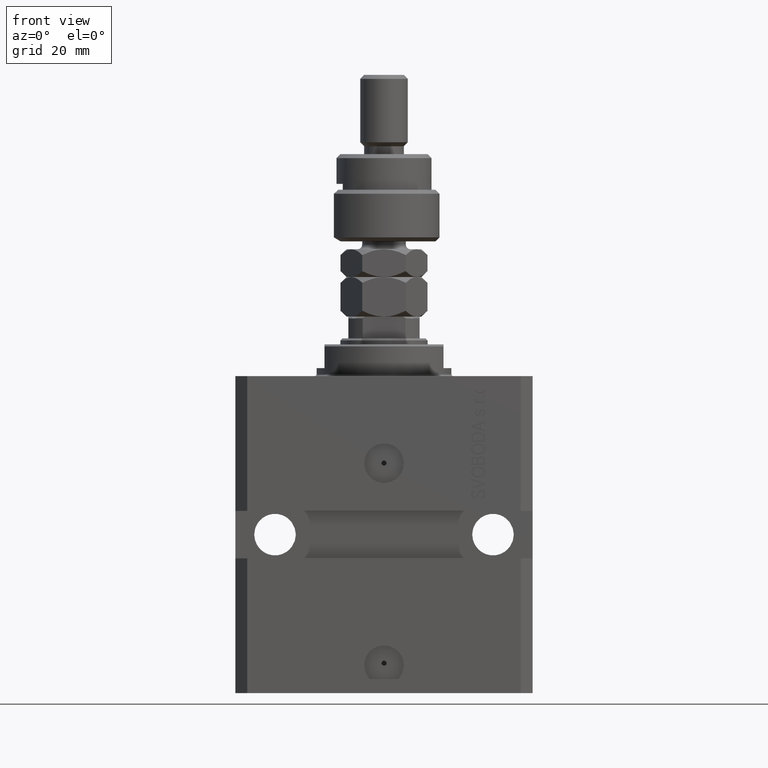
[diagram: clean part render]
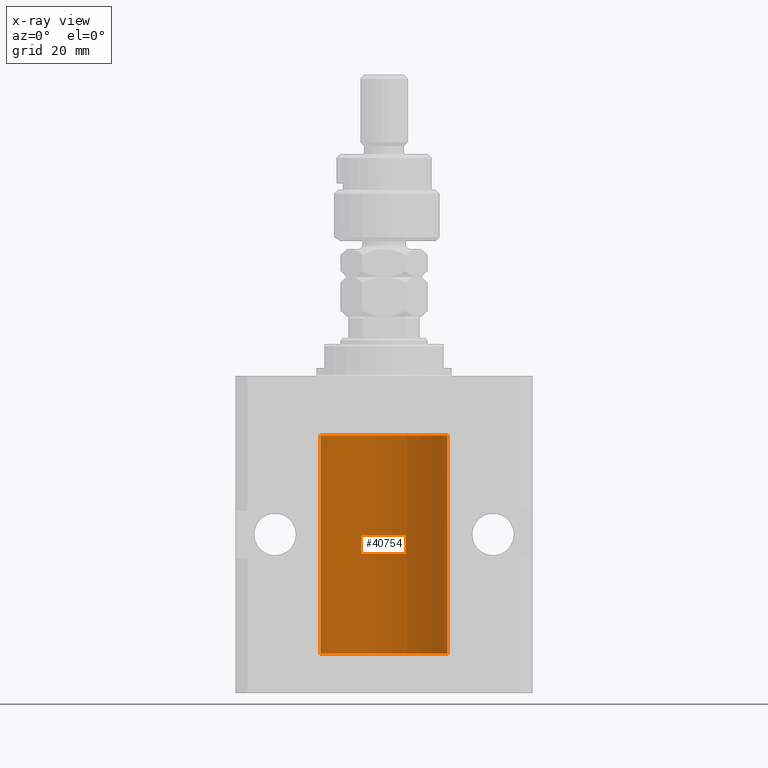
[diagram: x-ray — body ghosted, one internal face saturated and labeled with its STEP entity id]
A machine part, front view, then the same camera in x-ray: the body is ghosted and one INTERNAL B-rep face — a face not visible from any outside direction — is saturated and labeled: STEP entity #40754.
In plain terms, the highlighted cylindrical surface (partial cylindrical patch) has radius 16 mm, axis along (0, 0, 1).
Its self-contained STEP definition (entity closure, byte-faithful):
#510 = CARTESIAN_POINT ( 'NONE',  ( -15.99228023727723702, 0.5003781296993395911, -68.38347829554236057 ) ) ;
#658 = CARTESIAN_POINT ( 'NONE',  ( -15.99228023727724413, 0.5003781296993413674, -22.38347829554236057 ) ) ;
#775 = VERTEX_POINT ( 'NONE', #46228 ) ;
#909 = CYLINDRICAL_SURFACE ( 'NONE', #19389, 16.00000000000000000 ) ;
#2593 = ORIENTED_EDGE ( 'NONE', *, *, #5458, .T. ) ;
#3767 = ORIENTED_EDGE ( 'NONE', *, *, #18071, .T. ) ;
#4276 = CARTESIAN_POINT ( 'NONE',  ( -15.98779057735153586, 0.6249419637998054888, -67.83670145863507628 ) ) ;
#4620 = EDGE_CURVE ( 'NONE', #20298, #38281, #29531, .T. ) ;
#4772 = CARTESIAN_POINT ( 'NONE',  ( -16.00000000000000711, 0.08259886010189028405, -67.37500000000001421 ) ) ;
#5458 = EDGE_CURVE ( 'NONE', #20298, #35867, #41907, .T. ) ;
#5510 = AXIS2_PLACEMENT_3D ( 'NONE', #28078, #8262, #19800 ) ;
#5635 = CARTESIAN_POINT ( 'NONE',  ( 0.000000000000000000, 0.000000000000000000, -15.00000000000000000 ) ) ;
#7265 = CARTESIAN_POINT ( 'NONE',  ( 16.00000000000000000, 0.000000000000000000, -70.09999999999999432 ) ) ;
#7692 = CARTESIAN_POINT ( 'NONE',  ( -15.99711699979842017, 0.3253759916140657737, -22.55856151623175521 ) ) ;
#7966 = CARTESIAN_POINT ( 'NONE',  ( -16.00000000000000000, 1.959434878635765131E-15, -70.09999999999999432 ) ) ;
#8208 = LINE ( 'NONE', #7966, #35666 ) ;
#8262 = DIRECTION ( 'NONE',  ( 0.000000000000000000, 0.000000000000000000, 1.000000000000000000 ) ) ;
#8433 = CARTESIAN_POINT ( 'NONE',  ( -16.00000000000013145, 3.685127034031037939E-13, -22.62500000000341771 ) ) ;
#9511 = AXIS2_PLACEMENT_3D ( 'NONE', #5635, #36246, #32474 ) ;
#10215 = CARTESIAN_POINT ( 'NONE',  ( -16.00000000000000711, 0.08259886010189904093, -21.37500000000000000 ) ) ;
#12043 = CARTESIAN_POINT ( 'NONE',  ( -15.99999999999998934, 0.1631714642025807183, -68.62499999999984368 ) ) ;
#12293 = CARTESIAN_POINT ( 'NONE',  ( -15.99548640841682712, 0.3843705577988820732, -67.50046628527007897 ) ) ;
#13590 = VERTEX_POINT ( 'NONE', #20001 ) ;
#14239 = VECTOR ( 'NONE', #17504, 1000.000000000000000 ) ;
#16655 = EDGE_CURVE ( 'NONE', #48424, #775, #29074, .T. ) ;
#17504 = DIRECTION ( 'NONE',  ( -0.000000000000000000, -0.000000000000000000, 1.000000000000000000 ) ) ;
#18057 = B_SPLINE_CURVE_WITH_KNOTS ( 'NONE', 3,
 ( #44608, #10215, #33292, #37561, #48612, #40836, #44853, #33798, #49107, #39057, #658, #7692, #23246, #8433 ),
 .UNSPECIFIED., .F., .F.,
 ( 4, 2, 2, 2, 2, 2, 4 ),
 ( 1.597328219370744179E-19, 0.0002442776652680942405, 0.0004885553305361882643, 0.0009771106610723839011, 0.001221388326340481665, 0.001465665991608579430, 0.001954221322144767369 ),
 .UNSPECIFIED. ) ;
#18071 = EDGE_CURVE ( 'NONE', #35867, #36425, #35957, .T. ) ;
#19389 = AXIS2_PLACEMENT_3D ( 'NONE', #38556, #46596, #45861 ) ;
#19572 = CARTESIAN_POINT ( 'NONE',  ( -15.98844267028591126, 0.6088369347963314970, -68.16324735024328163 ) ) ;
#19800 = DIRECTION ( 'NONE',  ( 1.000000000000000000, 0.000000000000000000, 0.000000000000000000 ) ) ;
#20001 = CARTESIAN_POINT ( 'NONE',  ( -16.00000000000000000, 1.643679961284177128E-16, -21.37499999999999645 ) ) ;
#20065 = CARTESIAN_POINT ( 'NONE',  ( -15.99707730059171240, 0.3150375992092334654, -67.45402333202571299 ) ) ;
#20298 = VERTEX_POINT ( 'NONE', #30968 ) ;
#23071 = CARTESIAN_POINT ( 'NONE',  ( -16.00000000000000000, -9.346608026143465119E-15, -67.37500000000000000 ) ) ;
#23246 = CARTESIAN_POINT ( 'NONE',  ( -16.00000000000000000, 0.1631714642025800244, -22.62499999999985789 ) ) ;
#23272 = DIRECTION ( 'NONE',  ( -0.000000000000000000, -0.000000000000000000, 1.000000000000000000 ) ) ;
#23957 = ORIENTED_EDGE ( 'NONE', *, *, #28907, .F. ) ;
#24089 = CARTESIAN_POINT ( 'NONE',  ( -15.99934216141748244, 0.1636497843296345067, -67.39126528029308361 ) ) ;
#25439 = LINE ( 'NONE', #40747, #33032 ) ;
#26172 = EDGE_CURVE ( 'NONE', #48424, #42430, #26439, .T. ) ;
#26439 = B_SPLINE_CURVE_WITH_KNOTS ( 'NONE', 3,
 ( #31614, #4772, #24089, #20065, #12293, #35385, #4276, #39405, #19572, #34885, #510, #31123, #12043, #42686 ),
 .UNSPECIFIED., .F., .F.,
 ( 4, 2, 2, 2, 2, 2, 4 ),
 ( 9.902737362640428303E-19, 0.0002442776652680895785, 0.0004885553305361781812, 0.0009771106610723552782, 0.001221388326340464752, 0.001465665991608574008, 0.001954221322144763465 ),
 .UNSPECIFIED. ) ;
#27014 = FACE_OUTER_BOUND ( 'NONE', #29626, .T. ) ;
#28078 = CARTESIAN_POINT ( 'NONE',  ( 0.000000000000000000, 0.000000000000000000, -70.09999999999999432 ) ) ;
#28499 = CARTESIAN_POINT ( 'NONE',  ( 16.00000000000000000, 0.000000000000000000, -15.00000000000000000 ) ) ;
#28829 = CARTESIAN_POINT ( 'NONE',  ( -16.00000000000000000, 1.959434878635765131E-15, -70.09999999999999432 ) ) ;
#28907 = EDGE_CURVE ( 'NONE', #38281, #42430, #25439, .T. ) ;
#29074 = LINE ( 'NONE', #28829, #14239 ) ;
#29531 = CIRCLE ( 'NONE', #5510, 16.00000000000000000 ) ;
#29626 = EDGE_LOOP ( 'NONE', ( #23957, #46922, #2593, #3767, #47064, #31019, #47170, #30876 ) ) ;
#30876 = ORIENTED_EDGE ( 'NONE', *, *, #26172, .T. ) ;
#30880 = CARTESIAN_POINT ( 'NONE',  ( -16.00000000000000000, 1.959434878635765131E-15, -70.09999999999999432 ) ) ;
#30968 = CARTESIAN_POINT ( 'NONE',  ( 16.00000000000000000, 0.000000000000000000, -70.09999999999999432 ) ) ;
#31019 = ORIENTED_EDGE ( 'NONE', *, *, #48620, .T. ) ;
#31123 = CARTESIAN_POINT ( 'NONE',  ( -15.99711699979840951, 0.3253759916140645525, -68.55856151623176231 ) ) ;
#31614 = CARTESIAN_POINT ( 'NONE',  ( -16.00000000000000000, -9.346608026143465119E-15, -67.37500000000000000 ) ) ;
#31929 = CARTESIAN_POINT ( 'NONE',  ( -16.00000000000013145, 3.685127046438747128E-13, -68.62500000000343903 ) ) ;
#32474 = DIRECTION ( 'NONE',  ( 1.000000000000000000, 0.000000000000000000, 0.000000000000000000 ) ) ;
#33032 = VECTOR ( 'NONE', #37472, 1000.000000000000000 ) ;
#33292 = CARTESIAN_POINT ( 'NONE',  ( -15.99934216141748244, 0.1636497843296417787, -21.39126528029306229 ) ) ;
#33798 = CARTESIAN_POINT ( 'NONE',  ( -15.98778717651346071, 0.6250289588122140971, -22.08131585687052478 ) ) ;
#34885 = CARTESIAN_POINT ( 'NONE',  ( -15.99070426498502862, 0.5462220647145645813, -68.31460064614141459 ) ) ;
#35385 = CARTESIAN_POINT ( 'NONE',  ( -15.99070653155268040, 0.5573233280232966491, -67.67348148680505915 ) ) ;
#35666 = VECTOR ( 'NONE', #23272, 1000.000000000000000 ) ;
#35867 = VERTEX_POINT ( 'NONE', #28499 ) ;
#35957 = CIRCLE ( 'NONE', #9511, 16.00000000000000000 ) ;
#36246 = DIRECTION ( 'NONE',  ( 0.000000000000000000, 0.000000000000000000, 1.000000000000000000 ) ) ;
#36425 = VERTEX_POINT ( 'NONE', #40900 ) ;
#37472 = DIRECTION ( 'NONE',  ( -0.000000000000000000, -0.000000000000000000, 1.000000000000000000 ) ) ;
#37561 = CARTESIAN_POINT ( 'NONE',  ( -15.99707730059171240, 0.3150375992092407373, -21.45402333202571654 ) ) ;
#38281 = VERTEX_POINT ( 'NONE', #30880 ) ;
#38556 = CARTESIAN_POINT ( 'NONE',  ( 0.000000000000000000, 0.000000000000000000, -70.09999999999999432 ) ) ;
#39057 = CARTESIAN_POINT ( 'NONE',  ( -15.99070426498503217, 0.5462220647145618058, -22.31460064614143590 ) ) ;
#39405 = CARTESIAN_POINT ( 'NONE',  ( -15.98778717651346426, 0.6250289588122136530, -68.08131585687053189 ) ) ;
#40004 = VECTOR ( 'NONE', #41650, 1000.000000000000000 ) ;
#40747 = CARTESIAN_POINT ( 'NONE',  ( -16.00000000000000000, 1.959434878635765131E-15, -70.09999999999999432 ) ) ;
#40754 = ADVANCED_FACE ( 'NONE', ( #27014 ), #909, .F. ) ;
#40836 = CARTESIAN_POINT ( 'NONE',  ( -15.99070653155267685, 0.5573233280232986475, -21.67348148680506625 ) ) ;
#40900 = CARTESIAN_POINT ( 'NONE',  ( -16.00000000000000000, 1.959434878635765131E-15, -15.00000000000000000 ) ) ;
#41650 = DIRECTION ( 'NONE',  ( -0.000000000000000000, -0.000000000000000000, 1.000000000000000000 ) ) ;
#41907 = LINE ( 'NONE', #7265, #40004 ) ;
#42430 = VERTEX_POINT ( 'NONE', #31929 ) ;
#42686 = CARTESIAN_POINT ( 'NONE',  ( -16.00000000000013145, 3.685127046438747128E-13, -68.62500000000343903 ) ) ;
#44608 = CARTESIAN_POINT ( 'NONE',  ( -16.00000000000000000, 1.643679961284177128E-16, -21.37499999999999645 ) ) ;
#44853 = CARTESIAN_POINT ( 'NONE',  ( -15.98779057735153941, 0.6249419637998100407, -21.83670145863507273 ) ) ;
#45861 = DIRECTION ( 'NONE',  ( 1.000000000000000000, 0.000000000000000000, 0.000000000000000000 ) ) ;
#46094 = EDGE_CURVE ( 'NONE', #13590, #36425, #8208, .T. ) ;
#46228 = CARTESIAN_POINT ( 'NONE',  ( -16.00000000000013145, 3.685127034031037939E-13, -22.62500000000341771 ) ) ;
#46596 = DIRECTION ( 'NONE',  ( -0.000000000000000000, -0.000000000000000000, 1.000000000000000000 ) ) ;
#46922 = ORIENTED_EDGE ( 'NONE', *, *, #4620, .F. ) ;
#47064 = ORIENTED_EDGE ( 'NONE', *, *, #46094, .F. ) ;
#47170 = ORIENTED_EDGE ( 'NONE', *, *, #16655, .F. ) ;
#48424 = VERTEX_POINT ( 'NONE', #23071 ) ;
#48612 = CARTESIAN_POINT ( 'NONE',  ( -15.99548640841683067, 0.3843705577988847377, -21.50046628527008608 ) ) ;
#48620 = EDGE_CURVE ( 'NONE', #13590, #775, #18057, .T. ) ;
#49107 = CARTESIAN_POINT ( 'NONE',  ( -15.98844267028591482, 0.6088369347963316081, -22.16324735024328518 ) ) ;